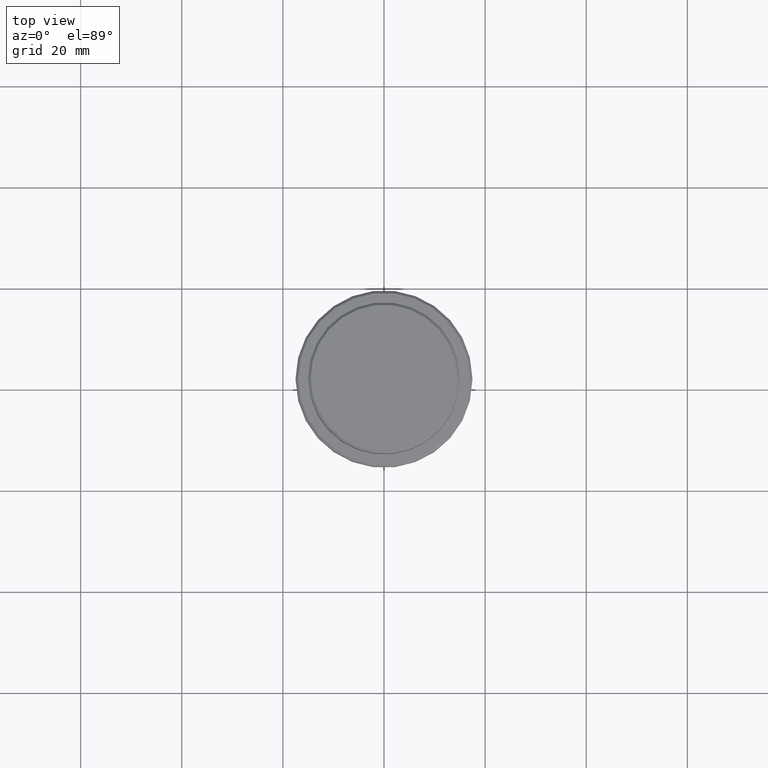
[diagram: clean part render]
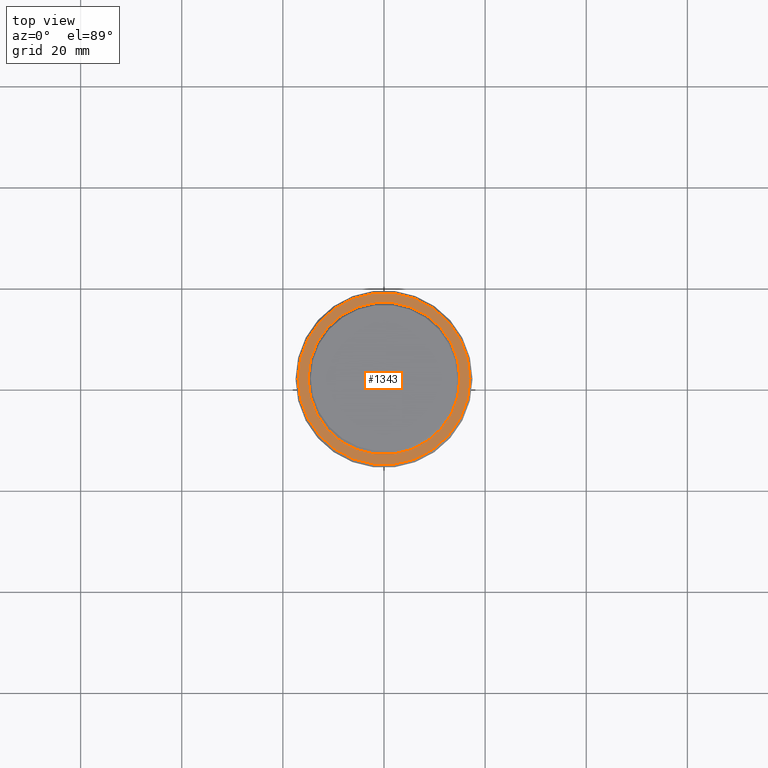
[diagram: same view with one face highlighted and labeled with its STEP entity id]
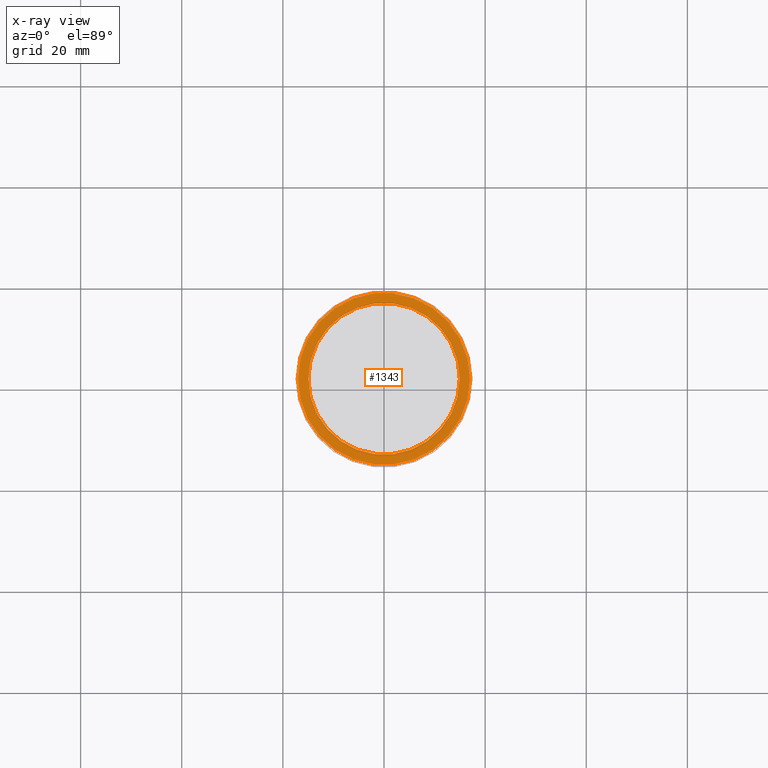
[diagram: x-ray of the same camera — body ghosted, the highlighted face saturated]
A machine part, top view. The second image highlights one B-rep face of the part: STEP entity #1343.
The next image is the same camera in x-ray: the body ghosted, the highlighted face saturated — about 0% of this face is hidden behind the body in this view.
In plain terms, the highlighted planar face has unit normal (0, -0, 1).
Its self-contained STEP definition (entity closure, byte-faithful):
#17 = ORIENTED_EDGE ( 'NONE', *, *, #198, .T. ) ;
#53 = CARTESIAN_POINT ( 'NONE',  ( 17.00000000000000000, 2.112515728529184067E-15, -9.000000000000000000 ) ) ;
#65 = CARTESIAN_POINT ( 'NONE',  ( 0.000000000000000000, 0.000000000000000000, -9.000000000000000000 ) ) ;
#69 = CIRCLE ( 'NONE', #760, 14.99999999999999289 ) ;
#73 = DIRECTION ( 'NONE',  ( 0.000000000000000000, 0.000000000000000000, -1.000000000000000000 ) ) ;
#104 = DIRECTION ( 'NONE',  ( 1.000000000000000000, 0.000000000000000000, 0.000000000000000000 ) ) ;
#152 = AXIS2_PLACEMENT_3D ( 'NONE', #605, #73, #173 ) ;
#173 = DIRECTION ( 'NONE',  ( 1.000000000000000000, 0.000000000000000000, 0.000000000000000000 ) ) ;
#198 = EDGE_CURVE ( 'NONE', #1359, #341, #1176, .T. ) ;
#282 = CARTESIAN_POINT ( 'NONE',  ( -17.00000000000000000, 0.000000000000000000, -9.000000000000000000 ) ) ;
#341 = VERTEX_POINT ( 'NONE', #53 ) ;
#354 = CIRCLE ( 'NONE', #1157, 17.00000000000000000 ) ;
#421 = CIRCLE ( 'NONE', #152, 14.99999999999999289 ) ;
#462 = VERTEX_POINT ( 'NONE', #1012 ) ;
#483 = PLANE ( 'NONE',  #1186 ) ;
#508 = FACE_OUTER_BOUND ( 'NONE', #943, .T. ) ;
#509 = ORIENTED_EDGE ( 'NONE', *, *, #1111, .T. ) ;
#519 = EDGE_CURVE ( 'NONE', #592, #462, #69, .T. ) ;
#520 = DIRECTION ( 'NONE',  ( 0.000000000000000000, 0.000000000000000000, -1.000000000000000000 ) ) ;
#529 = DIRECTION ( 'NONE',  ( 1.000000000000000000, 0.000000000000000000, 0.000000000000000000 ) ) ;
#531 = EDGE_CURVE ( 'NONE', #462, #592, #421, .T. ) ;
#592 = VERTEX_POINT ( 'NONE', #610 ) ;
#605 = CARTESIAN_POINT ( 'NONE',  ( 0.000000000000000000, 0.000000000000000000, -9.000000000000000000 ) ) ;
#610 = CARTESIAN_POINT ( 'NONE',  ( -14.99999999999999289, 1.836970198721028800E-15, -9.000000000000000000 ) ) ;
#611 = EDGE_LOOP ( 'NONE', ( #1089, #947 ) ) ;
#683 = AXIS2_PLACEMENT_3D ( 'NONE', #1071, #872, #104 ) ;
#720 = DIRECTION ( 'NONE',  ( 1.000000000000000000, 0.000000000000000000, 0.000000000000000000 ) ) ;
#760 = AXIS2_PLACEMENT_3D ( 'NONE', #65, #520, #720 ) ;
#872 = DIRECTION ( 'NONE',  ( -0.000000000000000000, -0.000000000000000000, 1.000000000000000000 ) ) ;
#943 = EDGE_LOOP ( 'NONE', ( #17, #509 ) ) ;
#947 = ORIENTED_EDGE ( 'NONE', *, *, #519, .T. ) ;
#1012 = CARTESIAN_POINT ( 'NONE',  ( 14.99999999999999289, 0.000000000000000000, -9.000000000000000000 ) ) ;
#1015 = DIRECTION ( 'NONE',  ( 0.000000000000000000, -0.000000000000000000, 1.000000000000000000 ) ) ;
#1031 = DIRECTION ( 'NONE',  ( 1.000000000000000000, 0.000000000000000000, 0.000000000000000000 ) ) ;
#1042 = FACE_BOUND ( 'NONE', #611, .T. ) ;
#1071 = CARTESIAN_POINT ( 'NONE',  ( 0.000000000000000000, 0.000000000000000000, -9.000000000000000000 ) ) ;
#1084 = DIRECTION ( 'NONE',  ( -0.000000000000000000, -0.000000000000000000, 1.000000000000000000 ) ) ;
#1089 = ORIENTED_EDGE ( 'NONE', *, *, #531, .T. ) ;
#1111 = EDGE_CURVE ( 'NONE', #341, #1359, #354, .T. ) ;
#1157 = AXIS2_PLACEMENT_3D ( 'NONE', #1174, #1084, #529 ) ;
#1174 = CARTESIAN_POINT ( 'NONE',  ( 0.000000000000000000, 0.000000000000000000, -9.000000000000000000 ) ) ;
#1176 = CIRCLE ( 'NONE', #683, 17.00000000000000000 ) ;
#1186 = AXIS2_PLACEMENT_3D ( 'NONE', #1262, #1015, #1031 ) ;
#1262 = CARTESIAN_POINT ( 'NONE',  ( 0.000000000000000000, 14.49999999999999467, -9.000000000000000000 ) ) ;
#1343 = ADVANCED_FACE ( 'NONE', ( #508, #1042 ), #483, .T. ) ;
#1359 = VERTEX_POINT ( 'NONE', #282 ) ;